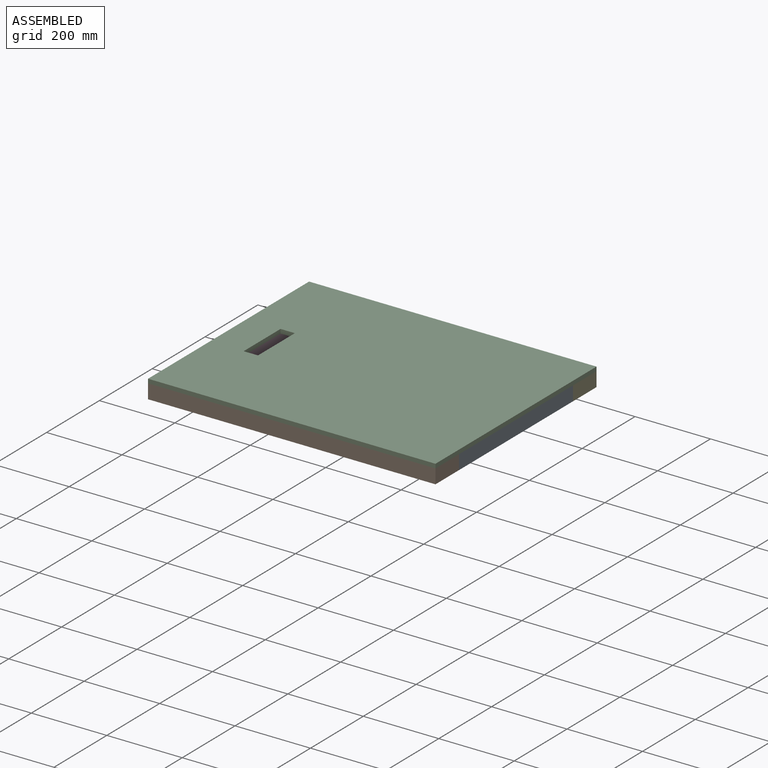
[diagram: assembled view]
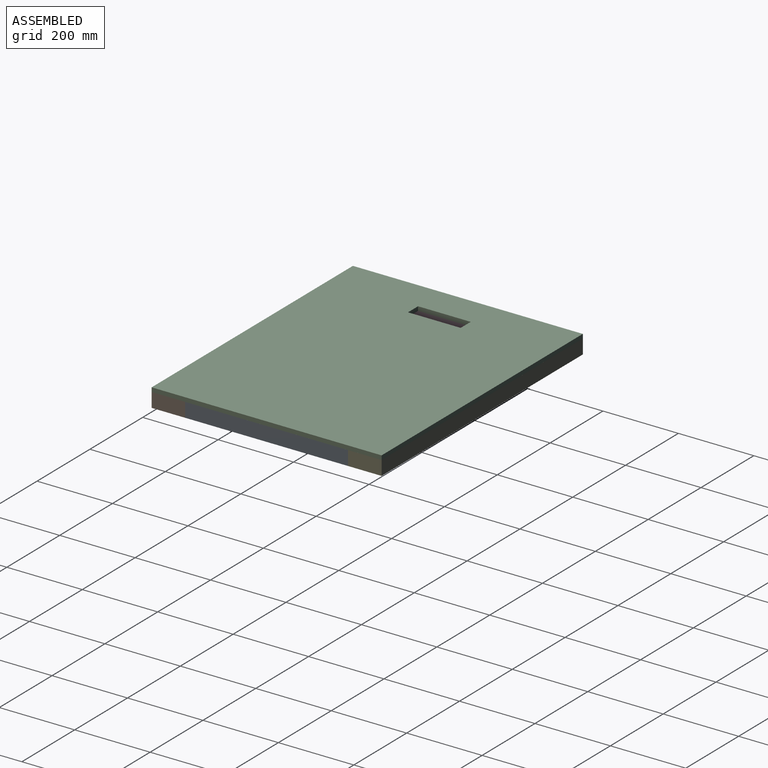
[diagram: assembled view, second angle]
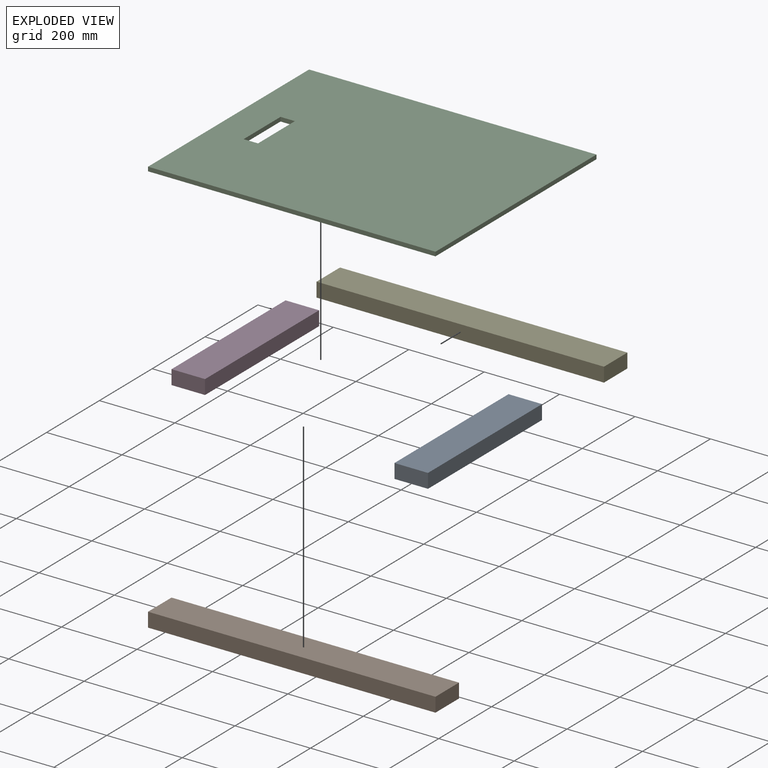
[diagram: exploded view]
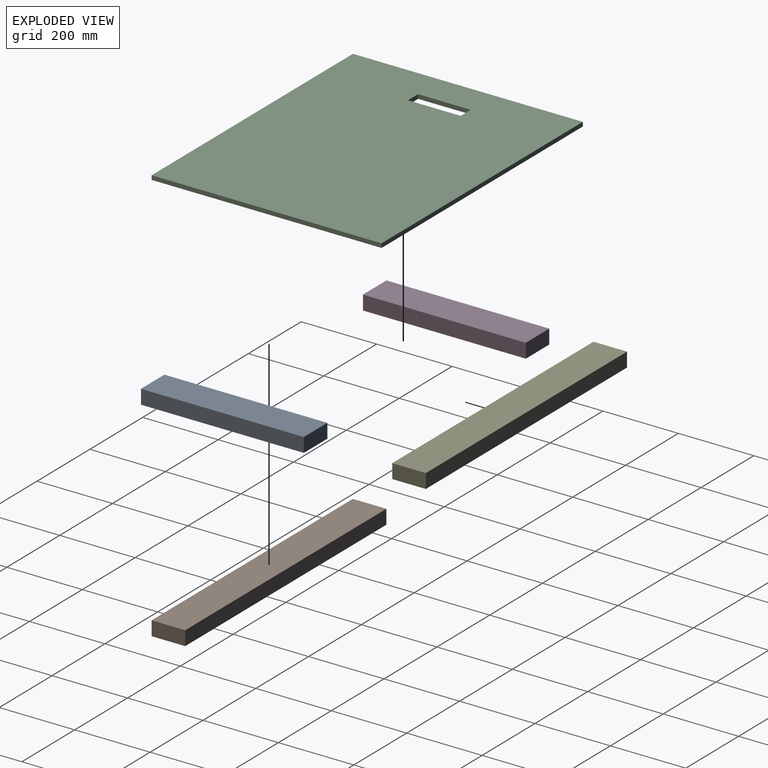
[diagram: exploded view, second angle]
ASSEMBLY  parts=5 mates=4
PART A: 6 faces, bbox 38.1x88.9x431.8 mm
  f0: plane 431.8x88.9mm, normal (1,0,0), area 38387mm2, adj f1,f3,f4,f5
  f1: plane 431.8x38.1mm, normal (0,1,0), area 16451.6mm2, adj f0,f2,f4,f5
  f2: plane 431.8x88.9mm, normal (-1,0,0), area 38387mm2, adj f1,f3,f4,f5
  f3: plane 431.8x38.1mm, normal (0,-1,0), area 16451.6mm2, adj f0,f2,f4,f5
  f4: plane 88.9x38.1mm, normal (0,0,-1), area 3387.1mm2, adj f0,f1,f2,f3
  f5: plane 88.9x38.1mm, normal (0,0,1), area 3387.1mm2, adj f0,f1,f2,f3
PART B: 6 faces, bbox 38.1x88.9x762 mm
  f0: plane 762x88.9mm, normal (1,0,0), area 67741.8mm2, adj f1,f3,f4,f5
  f1: plane 762x38.1mm, normal (0,1,0), area 29032.2mm2, adj f0,f2,f4,f5
  f2: plane 762x88.9mm, normal (-1,0,0), area 67741.8mm2, adj f1,f3,f4,f5
  f3: plane 762x38.1mm, normal (0,-1,0), area 29032.2mm2, adj f0,f2,f4,f5
  f4: plane 88.9x38.1mm, normal (0,0,1), area 3387.1mm2, adj f0,f1,f2,f3
  f5: plane 88.9x38.1mm, normal (0,0,-1), area 3387.1mm2, adj f0,f1,f2,f3
PART C: 10 faces, bbox 762x609.6x11.1 mm
  f0: plane 762x609.6mm, normal (0,0,1), area 459192.6mm2, adj f2,f3,f4,f5,f6,f7,f8,f9
  f1: plane 762x609.6mm, normal (0,0,-1), area 459192.6mm2, adj f2,f3,f4,f5,f6,f7,f8,f9
  f2: plane 609.6x11.11mm, normal (1,0,0), area 6774.2mm2, adj f0,f1,f3,f5
  f3: plane 762x11.11mm, normal (0,1,0), area 8467.7mm2, adj f0,f1,f2,f4
  f4: plane 609.6x11.11mm, normal (-1,0,0), area 6774.2mm2, adj f0,f1,f3,f5
  f5: plane 762x11.11mm, normal (0,-1,0), area 8467.7mm2, adj f0,f1,f2,f4
  f6: plane 139.7x11.11mm, normal (1,0,0), area 1552.4mm2, adj f0,f1,f7,f9
  f7: plane 38.1x11.11mm, normal (0,1,0), area 423.4mm2, adj f0,f1,f6,f8
  f8: plane 139.7x11.11mm, normal (-1,0,0), area 1552.4mm2, adj f0,f1,f7,f9
  f9: plane 38.1x11.11mm, normal (0,-1,0), area 423.4mm2, adj f0,f1,f6,f8
PART D: same geometry as A
PART E: same geometry as B
PLACE A rot(axis=(-0.58,0.58,0.58),120deg) t=(291.45,-231.95,-9.63)mm
PLACE B rot(axis=(0,1,0),90deg) t=(-426.1,-276.4,-9.63)mm
PLACE C t=(-45.1,-16.05,9.42)mm
PLACE D rot(axis=(-0.58,0.58,0.58),120deg) t=(-381.65,-231.95,-9.63)mm
PLACE E rot(axis=(0,-1,0),90deg) t=(335.9,244.3,-9.63)mm
MATE fastened E.f0 <-> C.f1  axis (0,0,1) through (-426.1,288.75,9.42)mm
MATE fastened A.f5 <-> E.f3  axis (0,1,0) through (335.9,199.85,9.42)mm
MATE revolute D.f5 <-> E.f3  axis (0,1,0) through (-426.1,199.85,9.42)mm
MATE fastened B.f2 <-> C.f1  axis (0,0,1) through (-426.1,-320.85,9.42)mm
